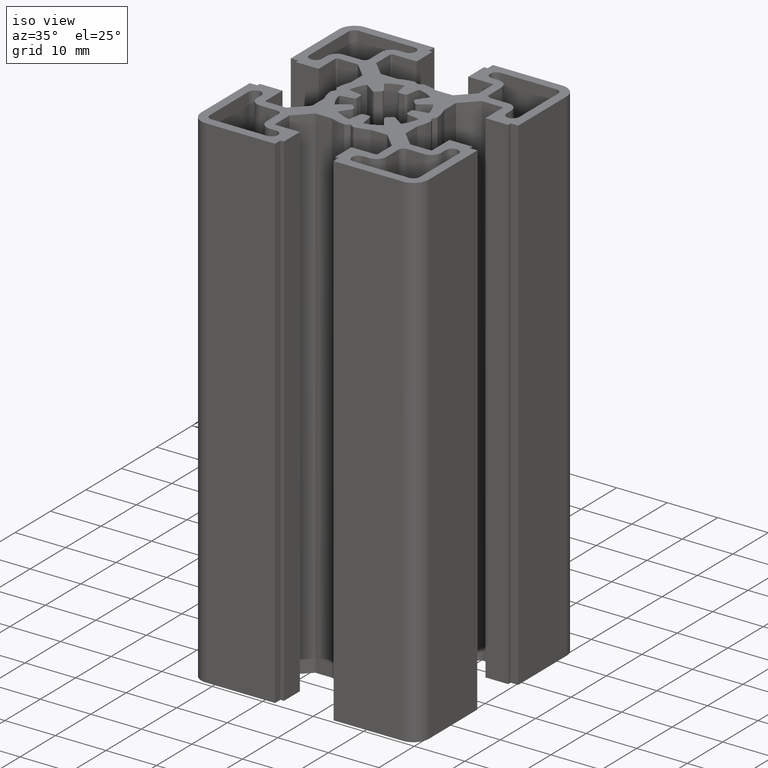
[diagram: clean part render]
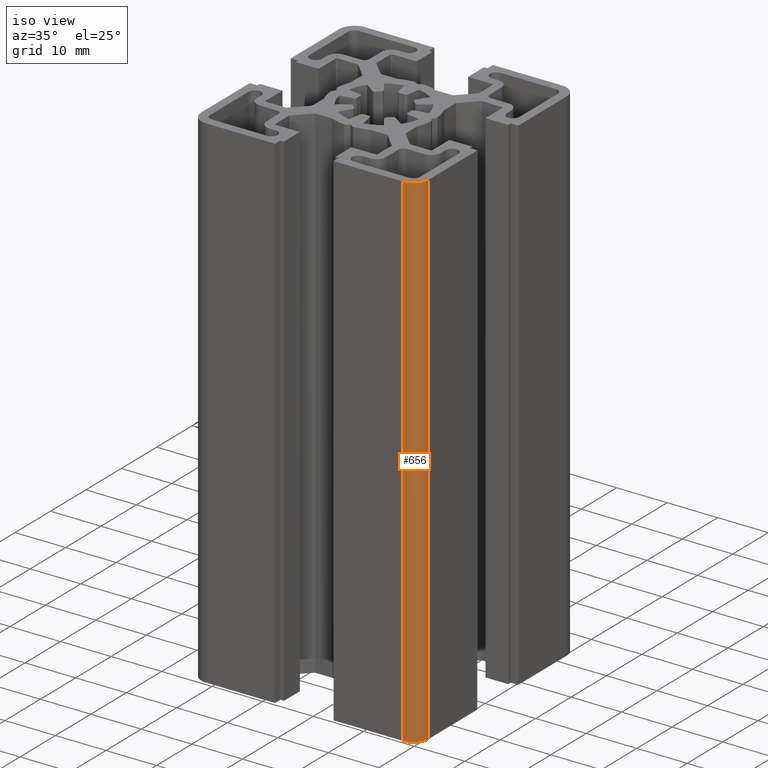
[diagram: same view with one face highlighted and labeled with its STEP entity id]
A machine part, iso view. The second image highlights one B-rep face of the part: STEP entity #656.
In plain terms, the highlighted cylindrical surface (edge-blend (fillet) strip) has radius 3 mm, axis along (-0, -0, -1).
Its self-contained STEP definition (entity closure, byte-faithful):
#655 = ORIENTED_EDGE ( 'NONE', *, *, #725, .F. ) ;
#656 = ADVANCED_FACE ( 'NONE', ( #2810 ), #2815, .T. ) ;
#658 = ORIENTED_EDGE ( 'NONE', *, *, #1670, .T. ) ;
#660 = ORIENTED_EDGE ( 'NONE', *, *, #672, .T. ) ;
#661 = ORIENTED_EDGE ( 'NONE', *, *, #847, .F. ) ;
#669 = EDGE_LOOP ( 'NONE', ( #658, #655, #661, #660 ) ) ;
#672 = EDGE_CURVE ( 'NONE', #836, #1672, #2814, .T. ) ;
#725 = EDGE_CURVE ( 'NONE', #835, #1646, #2921, .T. ) ;
#835 = VERTEX_POINT ( 'NONE', #3118 ) ;
#836 = VERTEX_POINT ( 'NONE', #3117 ) ;
#847 = EDGE_CURVE ( 'NONE', #836, #835, #3112, .T. ) ;
#1646 = VERTEX_POINT ( 'NONE', #4392 ) ;
#1670 = EDGE_CURVE ( 'NONE', #1672, #1646, #4462, .T. ) ;
#1672 = VERTEX_POINT ( 'NONE', #4457 ) ;
#2769 = AXIS2_PLACEMENT_3D ( 'NONE', #2770, #2803, #2802 ) ;
#2770 = CARTESIAN_POINT ( 'NONE',  ( 19.50000000000000000, -19.50000000000000000, 100.0000000000000000 ) ) ;
#2772 = CARTESIAN_POINT ( 'NONE',  ( 19.50000000000000000, -22.50000000000000000, 100.0000000000000000 ) ) ;
#2802 = DIRECTION ( 'NONE',  ( -1.000000000000000000, 0.0000000000000000000, 0.0000000000000000000 ) ) ;
#2803 = DIRECTION ( 'NONE',  ( -0.0000000000000000000, -0.0000000000000000000, -1.000000000000000000 ) ) ;
#2810 = FACE_OUTER_BOUND ( 'NONE', #669, .T. ) ;
#2814 = LINE ( 'NONE', #2772, #2847 ) ;
#2815 = CYLINDRICAL_SURFACE ( 'NONE', #2769, 2.999999999999999100 ) ;
#2846 = DIRECTION ( 'NONE',  ( -0.0000000000000000000, -0.0000000000000000000, -1.000000000000000000 ) ) ;
#2847 = VECTOR ( 'NONE', #2846, 1000.000000000000000 ) ;
#2913 = DIRECTION ( 'NONE',  ( -0.0000000000000000000, -0.0000000000000000000, -1.000000000000000000 ) ) ;
#2914 = VECTOR ( 'NONE', #2913, 1000.000000000000000 ) ;
#2915 = CARTESIAN_POINT ( 'NONE',  ( 22.50000000000000000, -19.50000000000000000, 100.0000000000000000 ) ) ;
#2921 = LINE ( 'NONE', #2915, #2914 ) ;
#3112 = CIRCLE ( 'NONE', #3157, 2.999999999999999100 ) ;
#3117 = CARTESIAN_POINT ( 'NONE',  ( 19.50000000000000000, -22.50000000000000000, 100.0000000000000000 ) ) ;
#3118 = CARTESIAN_POINT ( 'NONE',  ( 22.50000000000000000, -19.50000000000000000, 100.0000000000000000 ) ) ;
#3154 = DIRECTION ( 'NONE',  ( 1.000000000000000000, 0.0000000000000000000, 0.0000000000000000000 ) ) ;
#3155 = DIRECTION ( 'NONE',  ( 0.0000000000000000000, 0.0000000000000000000, 1.000000000000000000 ) ) ;
#3156 = CARTESIAN_POINT ( 'NONE',  ( 19.50000000000000000, -19.50000000000000000, 100.0000000000000000 ) ) ;
#3157 = AXIS2_PLACEMENT_3D ( 'NONE', #3156, #3155, #3154 ) ;
#4392 = CARTESIAN_POINT ( 'NONE',  ( 22.50000000000000000, -19.50000000000000000, 0.0000000000000000000 ) ) ;
#4433 = CARTESIAN_POINT ( 'NONE',  ( 19.50000000000000000, -19.50000000000000000, 0.0000000000000000000 ) ) ;
#4457 = CARTESIAN_POINT ( 'NONE',  ( 19.50000000000000000, -22.50000000000000000, 0.0000000000000000000 ) ) ;
#4458 = DIRECTION ( 'NONE',  ( 1.000000000000000000, 0.0000000000000000000, 0.0000000000000000000 ) ) ;
#4459 = DIRECTION ( 'NONE',  ( 0.0000000000000000000, 0.0000000000000000000, 1.000000000000000000 ) ) ;
#4462 = CIRCLE ( 'NONE', #4467, 2.999999999999999100 ) ;
#4467 = AXIS2_PLACEMENT_3D ( 'NONE', #4433, #4459, #4458 ) ;